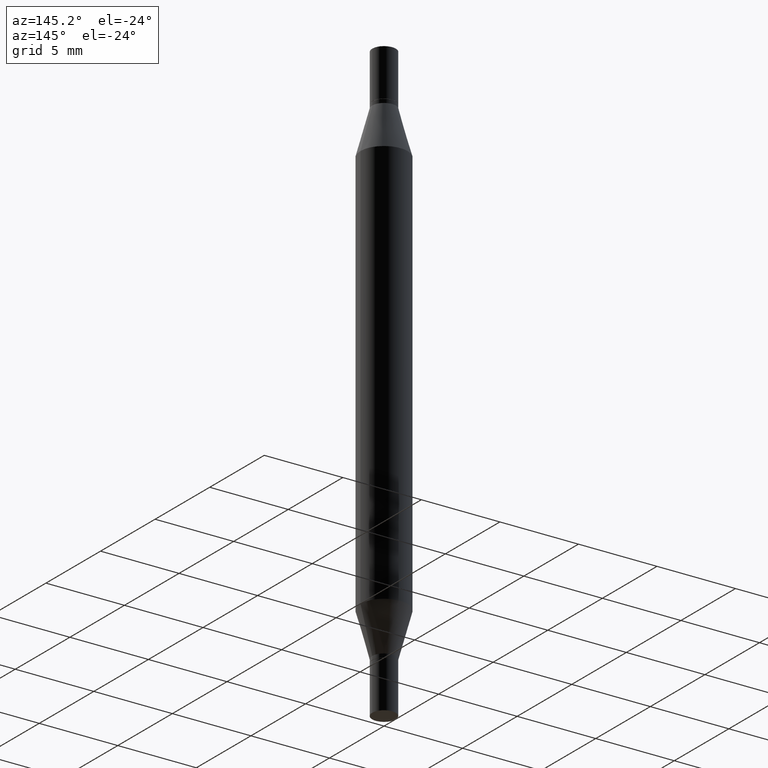
[diagram: clean part render]
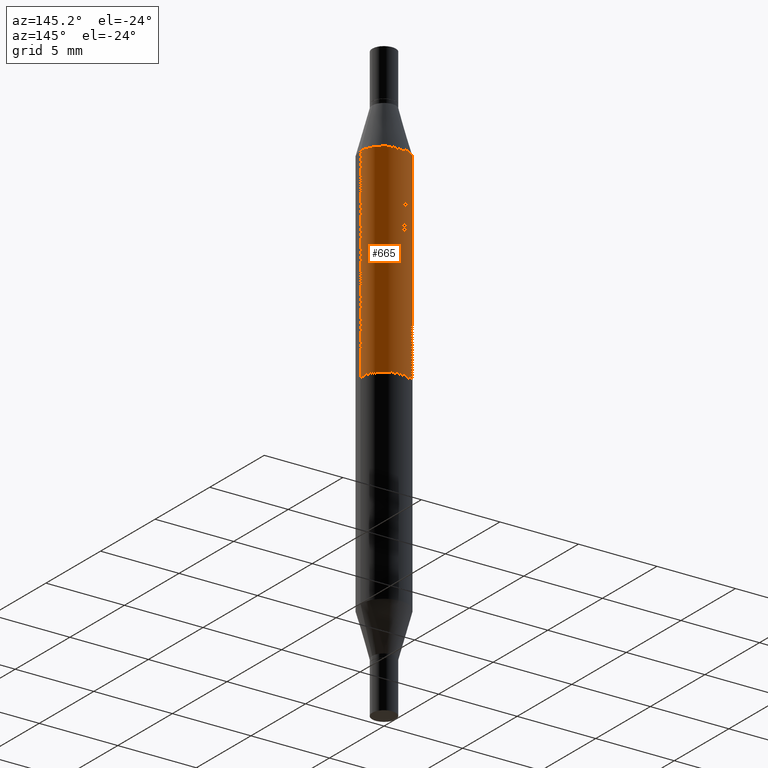
[diagram: same view with one face highlighted and labeled with its STEP entity id]
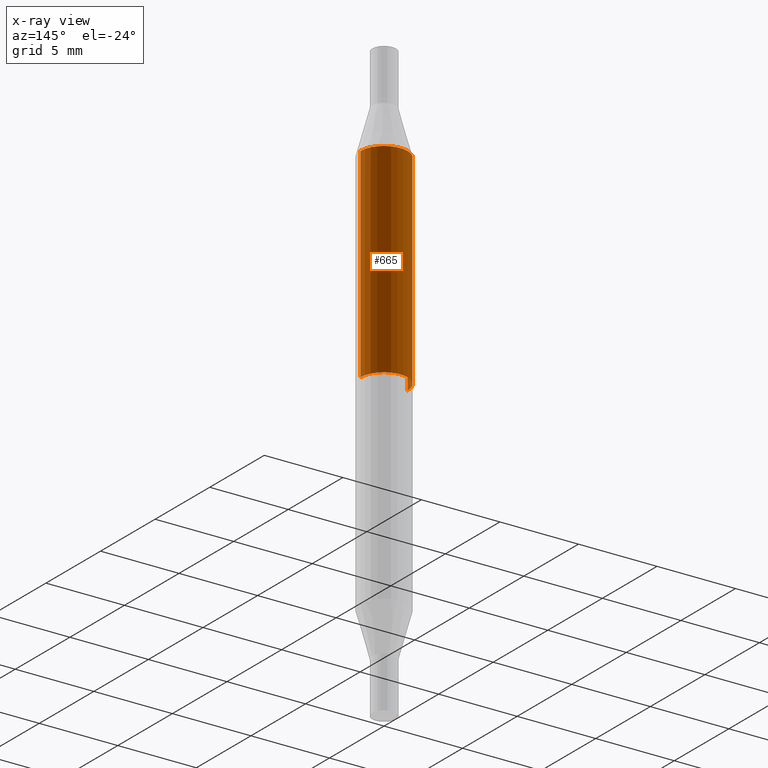
[diagram: x-ray of the same camera — body ghosted, the highlighted face saturated]
A machine part, auxiliary view. The second image highlights one B-rep face of the part: STEP entity #665.
The next image is the same camera in x-ray: the body ghosted, the highlighted face saturated — about 0% of this face is hidden behind the body in this view.
In plain terms, the highlighted cylindrical surface (edge-blend (fillet) strip) has radius 1.4999 mm, axis along (-0, -0, -1).
Its self-contained STEP definition (entity closure, byte-faithful):
#6 = EDGE_CURVE ( 'NONE', #866, #291, #838, .T. ) ;
#8 = CARTESIAN_POINT ( 'NONE',  ( 0.05905000000000000526, -2.133815698935376609E-15, -0.7480499999999999927 ) ) ;
#28 = DIRECTION ( 'NONE',  ( -0.000000000000000000, -3.491643216902134830E-15, -1.000000000000000000 ) ) ;
#82 = CARTESIAN_POINT ( 'NONE',  ( 1.829332940466791194E-29, -2.611802615521614830E-15, -0.7480499999999999927 ) ) ;
#115 = VERTEX_POINT ( 'NONE', #587 ) ;
#128 = VERTEX_POINT ( 'NONE', #893 ) ;
#291 = VERTEX_POINT ( 'NONE', #8 ) ;
#304 = CYLINDRICAL_SURFACE ( 'NONE', #724, 0.05905000000000000526 ) ;
#414 = LINE ( 'NONE', #718, #555 ) ;
#415 = CIRCLE ( 'NONE', #462, 0.05905000000000000526 ) ;
#453 = CARTESIAN_POINT ( 'NONE',  ( 0.05905000000000000526, -5.636191362924657961E-15, -1.496099999999999985 ) ) ;
#462 = AXIS2_PLACEMENT_3D ( 'NONE', #82, #28, #622 ) ;
#496 = DIRECTION ( 'NONE',  ( -2.445468806185136877E-29, -3.491805094961123683E-15, -1.000000000000000000 ) ) ;
#530 = DIRECTION ( 'NONE',  ( 1.000000000000000000, -6.982962677686265133E-15, 0.000000000000000000 ) ) ;
#555 = VECTOR ( 'NONE', #496, 39.37007874015748143 ) ;
#586 = EDGE_CURVE ( 'NONE', #866, #128, #931, .T. ) ;
#587 = CARTESIAN_POINT ( 'NONE',  ( -0.05905000000000000526, -1.316359346049593906E-15, -0.7480499999999999927 ) ) ;
#588 = CARTESIAN_POINT ( 'NONE',  ( 3.076410765668156654E-29, -8.311408901143919011E-16, -0.2380954988232820146 ) ) ;
#603 = CARTESIAN_POINT ( 'NONE',  ( 0.000000000000000000, -5.223847416807283040E-15, -1.496099999999999985 ) ) ;
#622 = DIRECTION ( 'NONE',  ( 0.000000000000000000, 1.000000000000000000, -4.626330217890369336E-15 ) ) ;
#661 = FACE_OUTER_BOUND ( 'NONE', #918, .T. ) ;
#665 = ADVANCED_FACE ( 'NONE', ( #661 ), #304, .T. ) ;
#698 = ORIENTED_EDGE ( 'NONE', *, *, #924, .F. ) ;
#718 = CARTESIAN_POINT ( 'NONE',  ( -0.05905000000000000526, -4.818735010038875060E-15, -1.496099999999999985 ) ) ;
#724 = AXIS2_PLACEMENT_3D ( 'NONE', #603, #751, #829 ) ;
#727 = ORIENTED_EDGE ( 'NONE', *, *, #6, .T. ) ;
#751 = DIRECTION ( 'NONE',  ( -2.445468806185136597E-29, -3.491805094961124077E-15, -1.000000000000000000 ) ) ;
#792 = EDGE_CURVE ( 'NONE', #115, #291, #415, .T. ) ;
#829 = DIRECTION ( 'NONE',  ( 1.000000000000000000, -6.982962677686272233E-15, 0.000000000000000000 ) ) ;
#838 = LINE ( 'NONE', #453, #853 ) ;
#853 = VECTOR ( 'NONE', #905, 39.37007874015748143 ) ;
#857 = CARTESIAN_POINT ( 'NONE',  ( 0.05904999999999999832, -1.243484836231766624E-15, -0.2380954988232820146 ) ) ;
#866 = VERTEX_POINT ( 'NONE', #857 ) ;
#893 = CARTESIAN_POINT ( 'NONE',  ( -0.05904999999999999832, -4.260284833459836245E-16, -0.2380954988232820146 ) ) ;
#905 = DIRECTION ( 'NONE',  ( -2.445468806185136877E-29, -3.491805094961123683E-15, -1.000000000000000000 ) ) ;
#914 = ORIENTED_EDGE ( 'NONE', *, *, #586, .F. ) ;
#918 = EDGE_LOOP ( 'NONE', ( #698, #914, #727, #920 ) ) ;
#920 = ORIENTED_EDGE ( 'NONE', *, *, #792, .F. ) ;
#924 = EDGE_CURVE ( 'NONE', #128, #115, #414, .T. ) ;
#931 = CIRCLE ( 'NONE', #946, 0.05904999999999999832 ) ;
#946 = AXIS2_PLACEMENT_3D ( 'NONE', #588, #977, #530 ) ;
#977 = DIRECTION ( 'NONE',  ( 2.445468806185136597E-29, 3.491805094961124077E-15, 1.000000000000000000 ) ) ;